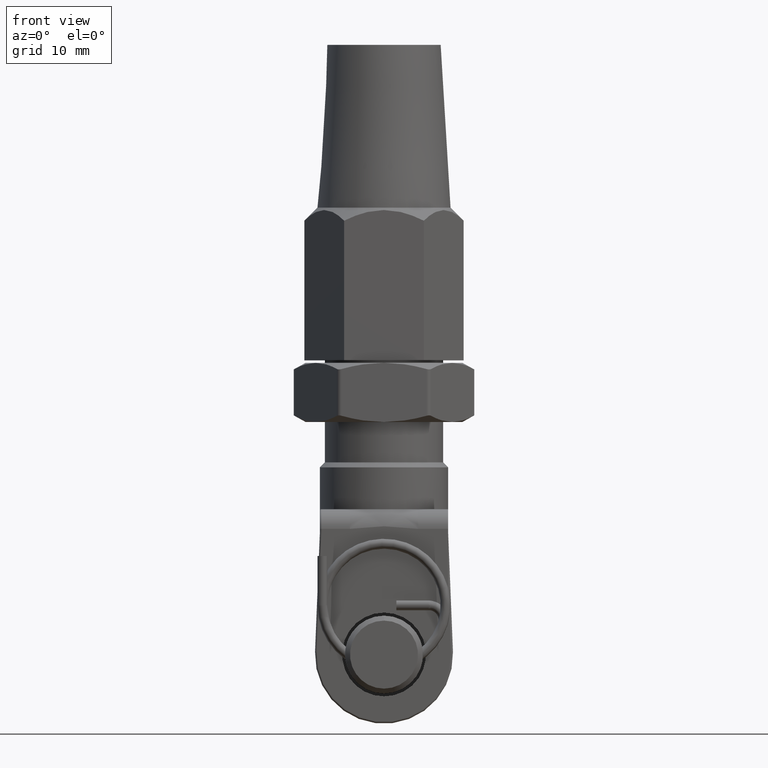
[diagram: clean part render]
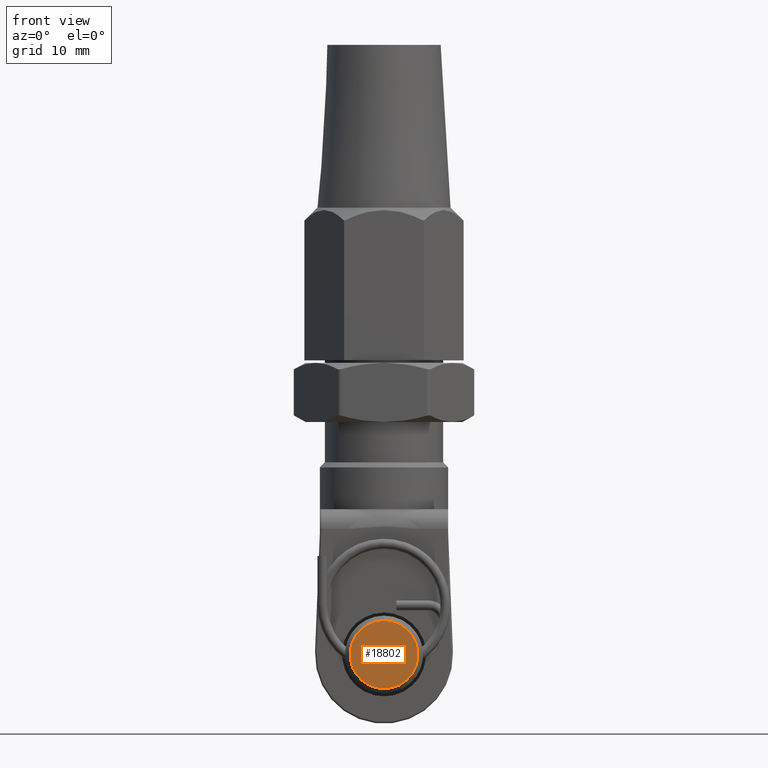
[diagram: same view with one face highlighted and labeled with its STEP entity id]
A machine part, front view. The second image highlights one B-rep face of the part: STEP entity #18802.
In plain terms, the highlighted planar face has unit normal (0, -1, 0).
Its self-contained STEP definition (entity closure, byte-faithful):
#344 = PLANE ( 'NONE',  #4664 ) ;
#1276 = CARTESIAN_POINT ( 'NONE',  ( 0.0000000000000000000, 20.89999999999999900, 3.449999999999999700 ) ) ;
#4664 = AXIS2_PLACEMENT_3D ( 'NONE', #12422, #21014, #19218 ) ;
#4932 = CIRCLE ( 'NONE', #18996, 3.449999999999999700 ) ;
#5318 = DIRECTION ( 'NONE',  ( 0.0000000000000000000, 0.0000000000000000000, 1.000000000000000000 ) ) ;
#7531 = EDGE_LOOP ( 'NONE', ( #19340 ) ) ;
#10851 = VERTEX_POINT ( 'NONE', #1276 ) ;
#12422 = CARTESIAN_POINT ( 'NONE',  ( 0.0000000000000000000, 20.89999999999999900, 0.0000000000000000000 ) ) ;
#14003 = DIRECTION ( 'NONE',  ( 0.0000000000000000000, 1.000000000000000000, 0.0000000000000000000 ) ) ;
#17446 = CARTESIAN_POINT ( 'NONE',  ( 0.0000000000000000000, 20.89999999999999900, 0.0000000000000000000 ) ) ;
#18802 = ADVANCED_FACE ( 'NONE', ( #21555 ), #344, .T. ) ;
#18996 = AXIS2_PLACEMENT_3D ( 'NONE', #17446, #14003, #5318 ) ;
#19218 = DIRECTION ( 'NONE',  ( 0.0000000000000000000, -0.0000000000000000000, 1.000000000000000000 ) ) ;
#19340 = ORIENTED_EDGE ( 'NONE', *, *, #19514, .T. ) ;
#19514 = EDGE_CURVE ( 'NONE', #10851, #10851, #4932, .T. ) ;
#21014 = DIRECTION ( 'NONE',  ( 0.0000000000000000000, 1.000000000000000000, 0.0000000000000000000 ) ) ;
#21555 = FACE_OUTER_BOUND ( 'NONE', #7531, .T. ) ;